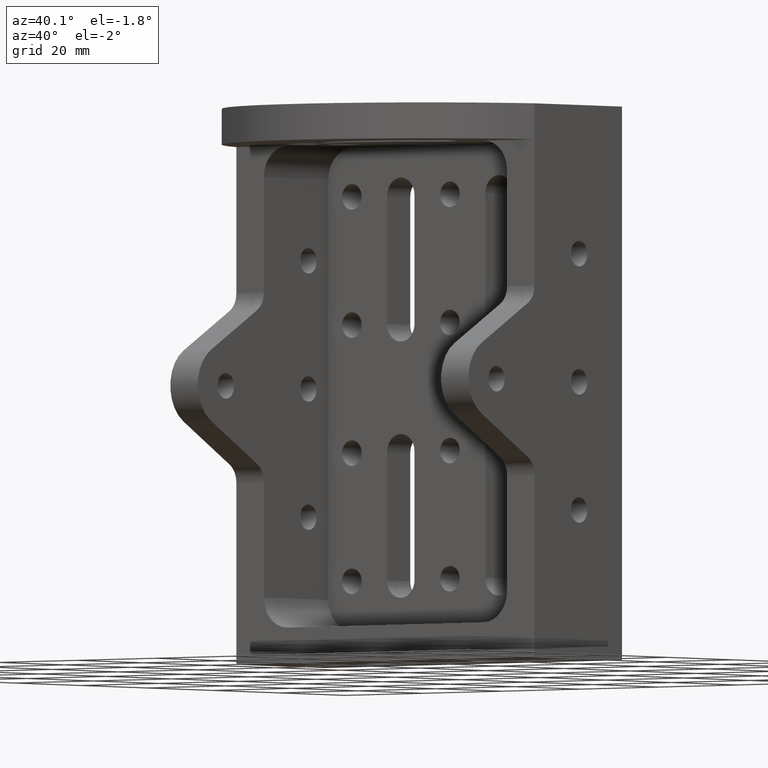
[diagram: clean part render]
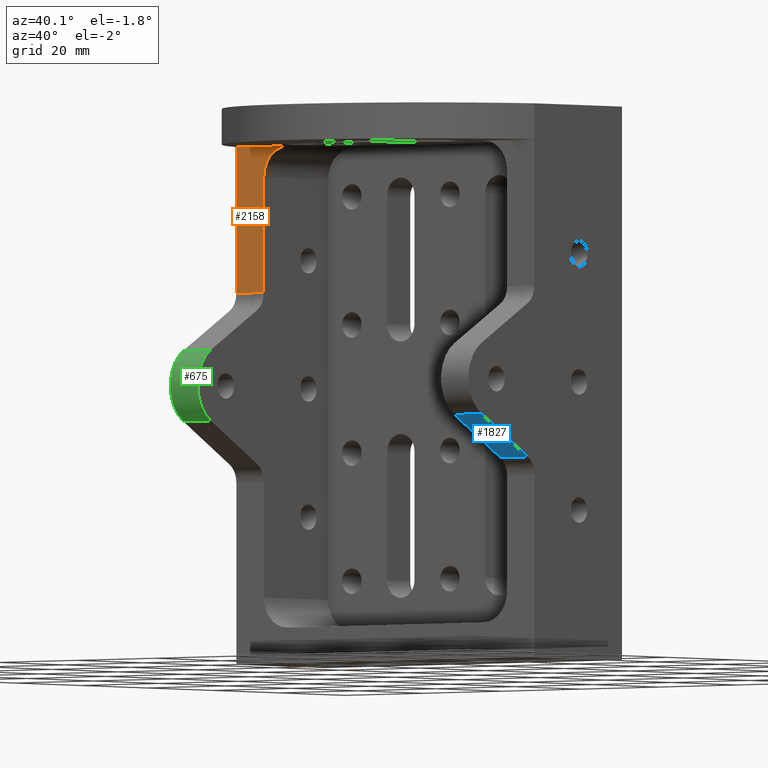
[diagram: same view with three faces highlighted in distinct colors, each labeled with its STEP entity id]
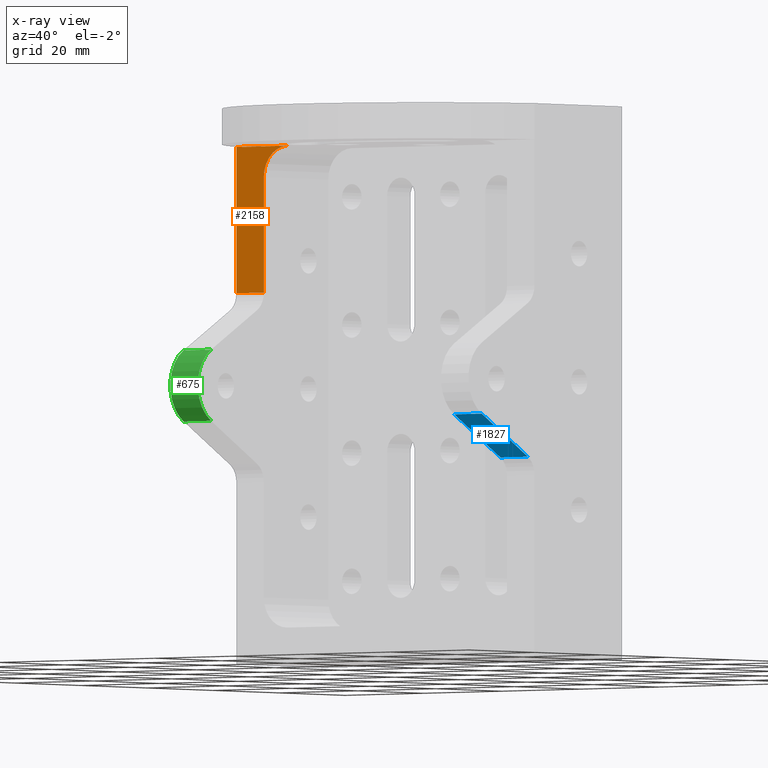
[diagram: x-ray of the same camera — body ghosted, the three highlighted faces saturated]
A machine part, auxiliary view with three faces highlighted in distinct colors.
The next image is the same camera in x-ray (body ghosted, the three faces saturated) — at least one of them is partly hidden behind the body in this view.
Their STEP definitions:

[orange] entity #2158 — the highlighted planar face has unit normal (0, 1, 0).
#7 = CARTESIAN_POINT ( 'NONE',  ( -31.00000000000000000, -26.50332882212206800, 18.48000000000000400 ) ) ;
#81 = VECTOR ( 'NONE', #2112, 1000.000000000000000 ) ;
#87 = EDGE_CURVE ( 'NONE', #2720, #204, #3535, .T. ) ;
#90 = VERTEX_POINT ( 'NONE', #1459 ) ;
#204 = VERTEX_POINT ( 'NONE', #2659 ) ;
#245 = EDGE_CURVE ( 'NONE', #2720, #659, #1687, .T. ) ;
#297 = VECTOR ( 'NONE', #1191, 1000.000000000000000 ) ;
#453 = ORIENTED_EDGE ( 'NONE', *, *, #245, .T. ) ;
#457 = CARTESIAN_POINT ( 'NONE',  ( -38.00000000000000000, -26.50332882212206800, 18.48000000000000400 ) ) ;
#511 = CARTESIAN_POINT ( 'NONE',  ( -38.00000000000000000, -26.50332882212206400, -3.224119684380701700E-015 ) ) ;
#522 = VECTOR ( 'NONE', #3577, 1000.000000000000000 ) ;
#569 = CIRCLE ( 'NONE', #843, 5.999999999999998200 ) ;
#604 = DIRECTION ( 'NONE',  ( 0.0000000000000000000, 0.0000000000000000000, -1.000000000000000000 ) ) ;
#614 = CARTESIAN_POINT ( 'NONE',  ( -31.00000000000000000, -26.50332882212206400, -3.224119684380701700E-015 ) ) ;
#617 = LINE ( 'NONE', #2403, #81 ) ;
#659 = VERTEX_POINT ( 'NONE', #1973 ) ;
#722 = VERTEX_POINT ( 'NONE', #457 ) ;
#830 = DIRECTION ( 'NONE',  ( 0.0000000000000000000, -1.216496126210969100E-016, 1.000000000000000000 ) ) ;
#843 = AXIS2_PLACEMENT_3D ( 'NONE', #2928, #3169, #2012 ) ;
#880 = CARTESIAN_POINT ( 'NONE',  ( -38.00000000000000000, -26.50332882212206400, -3.224119684380701700E-015 ) ) ;
#920 = VERTEX_POINT ( 'NONE', #7 ) ;
#974 = LINE ( 'NONE', #614, #297 ) ;
#1132 = AXIS2_PLACEMENT_3D ( 'NONE', #511, #3106, #830 ) ;
#1142 = DIRECTION ( 'NONE',  ( 1.000000000000000000, -0.0000000000000000000, -0.0000000000000000000 ) ) ;
#1145 = FACE_OUTER_BOUND ( 'NONE', #2795, .T. ) ;
#1191 = DIRECTION ( 'NONE',  ( 0.0000000000000000000, 1.216496126210969100E-016, -1.000000000000000000 ) ) ;
#1284 = PLANE ( 'NONE',  #1132 ) ;
#1316 = EDGE_CURVE ( 'NONE', #722, #2530, #2643, .T. ) ;
#1392 = LINE ( 'NONE', #2198, #522 ) ;
#1437 = CARTESIAN_POINT ( 'NONE',  ( -38.00000000000000000, -26.50332882212207200, 46.99999999999943200 ) ) ;
#1459 = CARTESIAN_POINT ( 'NONE',  ( -31.00000000000000000, -26.50332882212206800, 40.99999999999943200 ) ) ;
#1472 = DIRECTION ( 'NONE',  ( 0.0000000000000000000, -1.216496126210969100E-016, 1.000000000000000000 ) ) ;
#1476 = ORIENTED_EDGE ( 'NONE', *, *, #2416, .F. ) ;
#1621 = CARTESIAN_POINT ( 'NONE',  ( -38.00000000000000000, -26.50332882212207200, 44.00000000000000000 ) ) ;
#1672 = ORIENTED_EDGE ( 'NONE', *, *, #1869, .T. ) ;
#1687 = LINE ( 'NONE', #3225, #2637 ) ;
#1776 = VECTOR ( 'NONE', #1472, 1000.000000000000000 ) ;
#1869 = EDGE_CURVE ( 'NONE', #90, #204, #569, .T. ) ;
#1973 = CARTESIAN_POINT ( 'NONE',  ( -37.99890439134175300, -26.50332882212207200, 44.00000000000000000 ) ) ;
#2012 = DIRECTION ( 'NONE',  ( 0.0000000000000000000, 0.0000000000000000000, 1.000000000000000000 ) ) ;
#2062 = CARTESIAN_POINT ( 'NONE',  ( -37.99890439134175300, -26.50332882212207200, 46.99999999999943200 ) ) ;
#2112 = DIRECTION ( 'NONE',  ( 1.000000000000000000, -0.0000000000000000000, -0.0000000000000000000 ) ) ;
#2158 = ADVANCED_FACE ( 'NONE', ( #1145 ), #1284, .F. ) ;
#2198 = CARTESIAN_POINT ( 'NONE',  ( -38.00000000000000000, -26.50332882212207200, 44.00000000000000000 ) ) ;
#2370 = EDGE_CURVE ( 'NONE', #2530, #659, #1392, .T. ) ;
#2403 = CARTESIAN_POINT ( 'NONE',  ( -38.00000000000000000, -26.50332882212206800, 18.48000000000000400 ) ) ;
#2416 = EDGE_CURVE ( 'NONE', #90, #920, #974, .T. ) ;
#2530 = VERTEX_POINT ( 'NONE', #1621 ) ;
#2637 = VECTOR ( 'NONE', #604, 1000.000000000000000 ) ;
#2643 = LINE ( 'NONE', #880, #1776 ) ;
#2659 = CARTESIAN_POINT ( 'NONE',  ( -24.99999999999993600, -26.50332882212207200, 46.99999999999943200 ) ) ;
#2720 = VERTEX_POINT ( 'NONE', #2062 ) ;
#2795 = EDGE_LOOP ( 'NONE', ( #1476, #1672, #3529, #453, #3351, #3032, #3101 ) ) ;
#2928 = CARTESIAN_POINT ( 'NONE',  ( -24.99999999999993600, -26.50332882212206800, 40.99999999999943200 ) ) ;
#3032 = ORIENTED_EDGE ( 'NONE', *, *, #1316, .F. ) ;
#3101 = ORIENTED_EDGE ( 'NONE', *, *, #3328, .T. ) ;
#3106 = DIRECTION ( 'NONE',  ( 0.0000000000000000000, 1.000000000000000000, 1.216496126210969100E-016 ) ) ;
#3129 = VECTOR ( 'NONE', #1142, 1000.000000000000000 ) ;
#3169 = DIRECTION ( 'NONE',  ( 0.0000000000000000000, 1.000000000000000000, 1.216496126210969100E-016 ) ) ;
#3225 = CARTESIAN_POINT ( 'NONE',  ( -37.99890439134175300, -26.50332882212207200, 44.00000000000000000 ) ) ;
#3328 = EDGE_CURVE ( 'NONE', #722, #920, #617, .T. ) ;
#3351 = ORIENTED_EDGE ( 'NONE', *, *, #2370, .F. ) ;
#3529 = ORIENTED_EDGE ( 'NONE', *, *, #87, .F. ) ;
#3535 = LINE ( 'NONE', #1437, #3129 ) ;
#3577 = DIRECTION ( 'NONE',  ( 1.000000000000000000, 0.0000000000000000000, 0.0000000000000000000 ) ) ;

[blue] entity #1827 — the highlighted planar face has unit normal (0, 0.5002, 0.8659).
#208 = CARTESIAN_POINT ( 'NONE',  ( 31.00000000000000700, -28.51232305191474100, -15.00999999999999800 ) ) ;
#271 = VERTEX_POINT ( 'NONE', #878 ) ;
#455 = ORIENTED_EDGE ( 'NONE', *, *, #2882, .F. ) ;
#650 = AXIS2_PLACEMENT_3D ( 'NONE', #3429, #1387, #2547 ) ;
#651 = CARTESIAN_POINT ( 'NONE',  ( -38.00000000000000000, -42.49999999999997900, -6.930006739100238500 ) ) ;
#679 = CARTESIAN_POINT ( 'NONE',  ( 30.99999999999999300, -42.49999999999997200, -6.930006739100231300 ) ) ;
#802 = LINE ( 'NONE', #934, #1355 ) ;
#834 = LINE ( 'NONE', #1327, #3703 ) ;
#878 = CARTESIAN_POINT ( 'NONE',  ( 38.00000000000000000, -28.51232305191474100, -15.01000000000000200 ) ) ;
#934 = CARTESIAN_POINT ( 'NONE',  ( 31.00000000000006400, -71.88954991926557600, 10.04689129549800300 ) ) ;
#953 = EDGE_CURVE ( 'NONE', #1276, #1589, #802, .T. ) ;
#1078 = ORIENTED_EDGE ( 'NONE', *, *, #1684, .T. ) ;
#1133 = ORIENTED_EDGE ( 'NONE', *, *, #953, .F. ) ;
#1225 = DIRECTION ( 'NONE',  ( 2.082934903302122500E-015, -0.8659126844886195800, 0.5001951847446279900 ) ) ;
#1229 = ORIENTED_EDGE ( 'NONE', *, *, #2573, .T. ) ;
#1276 = VERTEX_POINT ( 'NONE', #208 ) ;
#1327 = CARTESIAN_POINT ( 'NONE',  ( 38.00000000000000000, -13.63485860111813400, -23.60397975431280000 ) ) ;
#1355 = VECTOR ( 'NONE', #1225, 999.9999999999998900 ) ;
#1387 = DIRECTION ( 'NONE',  ( 0.0000000000000000000, 0.5001951847446279900, 0.8659126844886195800 ) ) ;
#1391 = VECTOR ( 'NONE', #3311, 1000.000000000000000 ) ;
#1589 = VERTEX_POINT ( 'NONE', #679 ) ;
#1684 = EDGE_CURVE ( 'NONE', #271, #1895, #834, .T. ) ;
#1827 = ADVANCED_FACE ( 'NONE', ( #2010 ), #3695, .F. ) ;
#1839 = LINE ( 'NONE', #2003, #3363 ) ;
#1895 = VERTEX_POINT ( 'NONE', #2632 ) ;
#2003 = CARTESIAN_POINT ( 'NONE',  ( -38.00000000000000000, -28.51232305191474100, -15.01000000000000200 ) ) ;
#2010 = FACE_OUTER_BOUND ( 'NONE', #3689, .T. ) ;
#2233 = DIRECTION ( 'NONE',  ( 0.0000000000000000000, -0.8659126844886195800, 0.5001951847446278700 ) ) ;
#2536 = DIRECTION ( 'NONE',  ( 1.000000000000000000, -0.0000000000000000000, -0.0000000000000000000 ) ) ;
#2547 = DIRECTION ( 'NONE',  ( 0.0000000000000000000, -0.8659126844886195800, 0.5001951847446279900 ) ) ;
#2573 = EDGE_CURVE ( 'NONE', #1276, #271, #1839, .T. ) ;
#2632 = CARTESIAN_POINT ( 'NONE',  ( 38.00000000000000000, -42.49999999999997900, -6.930006739100238500 ) ) ;
#2882 = EDGE_CURVE ( 'NONE', #1589, #1895, #3451, .T. ) ;
#3311 = DIRECTION ( 'NONE',  ( 1.000000000000000000, -0.0000000000000000000, -0.0000000000000000000 ) ) ;
#3363 = VECTOR ( 'NONE', #2536, 1000.000000000000000 ) ;
#3429 = CARTESIAN_POINT ( 'NONE',  ( -38.00000000000000000, -13.63485860111813400, -23.60397975431280000 ) ) ;
#3451 = LINE ( 'NONE', #651, #1391 ) ;
#3689 = EDGE_LOOP ( 'NONE', ( #1133, #1229, #1078, #455 ) ) ;
#3695 = PLANE ( 'NONE',  #650 ) ;
#3703 = VECTOR ( 'NONE', #2233, 999.9999999999998900 ) ;

[green] entity #675 — the highlighted cylindrical surface (partial cylindrical patch) has radius 8.0031 mm, axis along (1, -0, -0).
#138 = CARTESIAN_POINT ( 'NONE',  ( -38.00000000000000000, -38.49687582450313500, 9.801000403789793100E-016 ) ) ;
#238 = ORIENTED_EDGE ( 'NONE', *, *, #3046, .T. ) ;
#294 = ORIENTED_EDGE ( 'NONE', *, *, #2120, .F. ) ;
#305 = FACE_OUTER_BOUND ( 'NONE', #3109, .T. ) ;
#371 = CARTESIAN_POINT ( 'NONE',  ( -30.99999999999997200, -38.49687582450313500, 9.801000403789793100E-016 ) ) ;
#520 = AXIS2_PLACEMENT_3D ( 'NONE', #371, #3279, #1857 ) ;
#675 = ADVANCED_FACE ( 'NONE', ( #305 ), #1755, .T. ) ;
#820 = DIRECTION ( 'NONE',  ( 1.000000000000000000, -0.0000000000000000000, -0.0000000000000000000 ) ) ;
#900 = DIRECTION ( 'NONE',  ( 1.000000000000000000, -0.0000000000000000000, -0.0000000000000000000 ) ) ;
#923 = CARTESIAN_POINT ( 'NONE',  ( -38.00000000000000000, -38.49687582450313500, 9.801000403789793100E-016 ) ) ;
#969 = VECTOR ( 'NONE', #2857, 1000.000000000000000 ) ;
#1232 = AXIS2_PLACEMENT_3D ( 'NONE', #138, #1596, #1826 ) ;
#1249 = VERTEX_POINT ( 'NONE', #3356 ) ;
#1290 = LINE ( 'NONE', #2565, #969 ) ;
#1434 = CARTESIAN_POINT ( 'NONE',  ( -38.00000000000000000, -42.49999999999997900, -6.930006739100238500 ) ) ;
#1542 = EDGE_CURVE ( 'NONE', #2438, #1249, #3354, .T. ) ;
#1596 = DIRECTION ( 'NONE',  ( -1.000000000000000000, 0.0000000000000000000, -0.0000000000000000000 ) ) ;
#1755 = CYLINDRICAL_SURFACE ( 'NONE', #2382, 8.003124175496838100 ) ;
#1781 = LINE ( 'NONE', #1434, #3182 ) ;
#1802 = VERTEX_POINT ( 'NONE', #3391 ) ;
#1817 = DIRECTION ( 'NONE',  ( 0.0000000000000000000, 0.0000000000000000000, -1.000000000000000000 ) ) ;
#1826 = DIRECTION ( 'NONE',  ( 0.0000000000000000000, 0.0000000000000000000, 1.000000000000000000 ) ) ;
#1857 = DIRECTION ( 'NONE',  ( -3.468092585718979900E-015, -1.000000000000000000, -5.329070518200749800E-015 ) ) ;
#1915 = CIRCLE ( 'NONE', #520, 8.003124175496839900 ) ;
#2006 = VERTEX_POINT ( 'NONE', #2684 ) ;
#2120 = EDGE_CURVE ( 'NONE', #1802, #2006, #1915, .T. ) ;
#2172 = ORIENTED_EDGE ( 'NONE', *, *, #1542, .F. ) ;
#2382 = AXIS2_PLACEMENT_3D ( 'NONE', #923, #900, #1817 ) ;
#2438 = VERTEX_POINT ( 'NONE', #2645 ) ;
#2565 = CARTESIAN_POINT ( 'NONE',  ( -38.00000000000000000, -42.49999999999997900, 6.930006739100242000 ) ) ;
#2645 = CARTESIAN_POINT ( 'NONE',  ( -38.00000000000000000, -42.49999999999997900, -6.930006739100238500 ) ) ;
#2671 = ORIENTED_EDGE ( 'NONE', *, *, #3130, .F. ) ;
#2684 = CARTESIAN_POINT ( 'NONE',  ( -30.99999999999997900, -42.49999999999997900, -6.930006739100238500 ) ) ;
#2857 = DIRECTION ( 'NONE',  ( 1.000000000000000000, -0.0000000000000000000, -0.0000000000000000000 ) ) ;
#3046 = EDGE_CURVE ( 'NONE', #2438, #2006, #1781, .T. ) ;
#3109 = EDGE_LOOP ( 'NONE', ( #294, #2671, #2172, #238 ) ) ;
#3130 = EDGE_CURVE ( 'NONE', #1249, #1802, #1290, .T. ) ;
#3182 = VECTOR ( 'NONE', #820, 1000.000000000000000 ) ;
#3279 = DIRECTION ( 'NONE',  ( 1.000000000000000000, -3.367670801987544500E-015, -0.0000000000000000000 ) ) ;
#3354 = CIRCLE ( 'NONE', #1232, 8.003124175496838100 ) ;
#3356 = CARTESIAN_POINT ( 'NONE',  ( -38.00000000000000000, -42.49999999999997900, 6.930006739100242000 ) ) ;
#3391 = CARTESIAN_POINT ( 'NONE',  ( -31.00000000000000000, -42.49999999999997900, 6.930006739100242000 ) ) ;